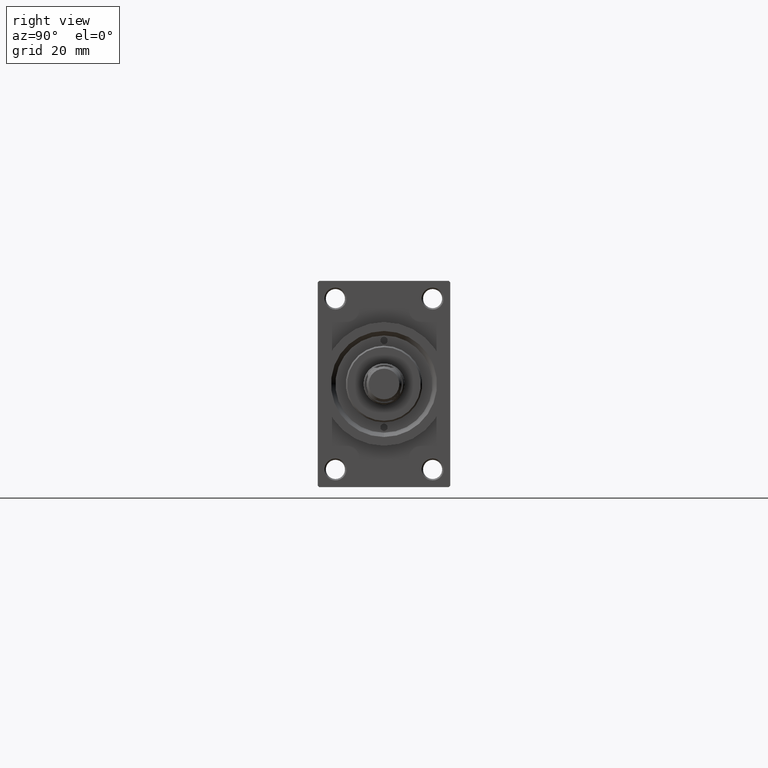
[diagram: clean part render]
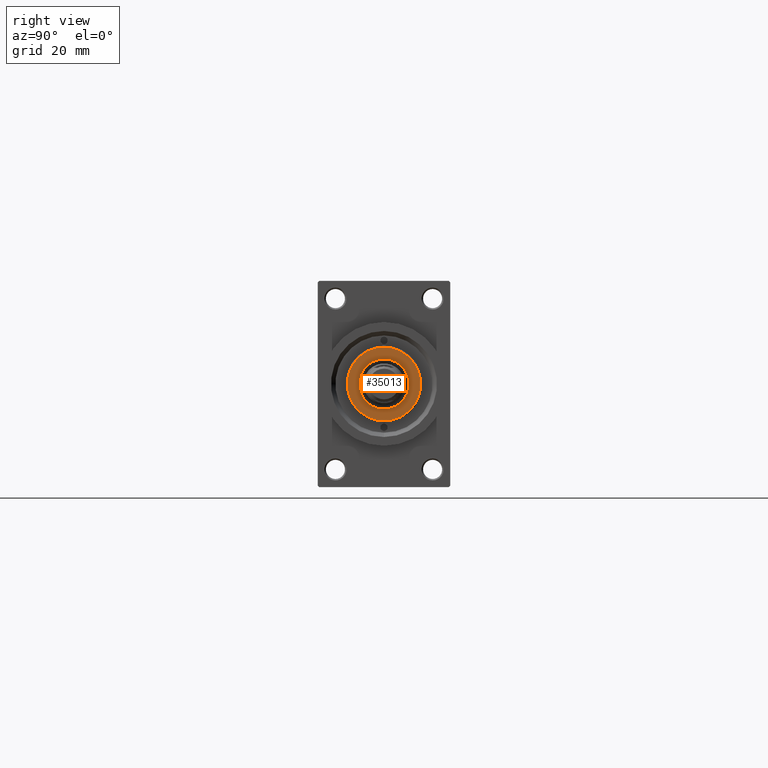
[diagram: same view with one face highlighted and labeled with its STEP entity id]
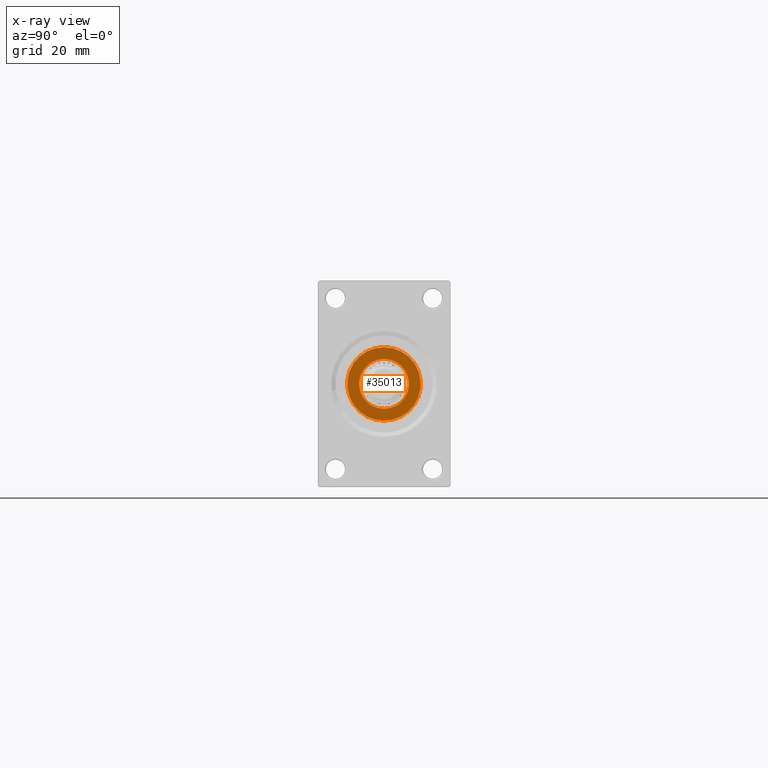
[diagram: x-ray of the same camera — body ghosted, the highlighted face saturated]
A machine part, right view. The second image highlights one B-rep face of the part: STEP entity #35013.
The next image is the same camera in x-ray: the body ghosted, the highlighted face saturated — about 0% of this face is hidden behind the body in this view.
In plain terms, the highlighted planar face has unit normal (1, -0, -0).
Its self-contained STEP definition (entity closure, byte-faithful):
#114 = DIRECTION ( 'NONE',  ( 0.000000000000000000, 0.000000000000000000, 1.000000000000000000 ) ) ;
#547 = CARTESIAN_POINT ( 'NONE',  ( 0.000000000000000000, 0.000000000000000000, 51.25999999999999801 ) ) ;
#623 = CIRCLE ( 'NONE', #33023, 12.49999999999998401 ) ;
#1095 = DIRECTION ( 'NONE',  ( 1.000000000000000000, 0.000000000000000000, 0.000000000000000000 ) ) ;
#1723 = EDGE_CURVE ( 'NONE', #41084, #3561, #22130, .T. ) ;
#3353 = CARTESIAN_POINT ( 'NONE',  ( 12.49999999999998401, 1.561424668912874322E-15, 51.25999999999999801 ) ) ;
#3561 = VERTEX_POINT ( 'NONE', #3353 ) ;
#4724 = CARTESIAN_POINT ( 'NONE',  ( 0.000000000000000000, 0.000000000000000000, 51.25999999999999801 ) ) ;
#7748 = EDGE_LOOP ( 'NONE', ( #45178, #39350 ) ) ;
#10254 = VERTEX_POINT ( 'NONE', #33018 ) ;
#14894 = CARTESIAN_POINT ( 'NONE',  ( 8.500000000000000000, 0.000000000000000000, 51.25999999999999801 ) ) ;
#15049 = DIRECTION ( 'NONE',  ( 0.000000000000000000, 0.000000000000000000, 1.000000000000000000 ) ) ;
#16976 = ORIENTED_EDGE ( 'NONE', *, *, #26093, .T. ) ;
#18296 = CARTESIAN_POINT ( 'NONE',  ( -12.49999999999998401, 0.000000000000000000, 51.25999999999999801 ) ) ;
#19614 = FACE_OUTER_BOUND ( 'NONE', #22287, .T. ) ;
#20901 = CARTESIAN_POINT ( 'NONE',  ( 0.000000000000000000, 0.000000000000000000, 51.25999999999999801 ) ) ;
#21623 = AXIS2_PLACEMENT_3D ( 'NONE', #547, #33666, #44797 ) ;
#22099 = CARTESIAN_POINT ( 'NONE',  ( 0.000000000000000000, 0.000000000000000000, 51.25999999999999801 ) ) ;
#22130 = CIRCLE ( 'NONE', #39882, 12.49999999999998401 ) ;
#22287 = EDGE_LOOP ( 'NONE', ( #38877, #16976 ) ) ;
#22769 = CARTESIAN_POINT ( 'NONE',  ( 0.000000000000000000, 0.000000000000000000, 51.25999999999999801 ) ) ;
#23246 = FACE_BOUND ( 'NONE', #7748, .T. ) ;
#23955 = CIRCLE ( 'NONE', #35535, 8.500000000000000000 ) ;
#25967 = DIRECTION ( 'NONE',  ( 1.000000000000000000, 0.000000000000000000, 0.000000000000000000 ) ) ;
#26093 = EDGE_CURVE ( 'NONE', #3561, #41084, #623, .T. ) ;
#26629 = PLANE ( 'NONE',  #26997 ) ;
#26997 = AXIS2_PLACEMENT_3D ( 'NONE', #22769, #15049, #29794 ) ;
#29794 = DIRECTION ( 'NONE',  ( 1.000000000000000000, 0.000000000000000000, -0.000000000000000000 ) ) ;
#30118 = CIRCLE ( 'NONE', #21623, 8.500000000000000000 ) ;
#33018 = CARTESIAN_POINT ( 'NONE',  ( -8.500000000000000000, 1.040949779275250140E-15, 51.25999999999999801 ) ) ;
#33023 = AXIS2_PLACEMENT_3D ( 'NONE', #4724, #34218, #1095 ) ;
#33666 = DIRECTION ( 'NONE',  ( 0.000000000000000000, 0.000000000000000000, 1.000000000000000000 ) ) ;
#34218 = DIRECTION ( 'NONE',  ( 0.000000000000000000, 0.000000000000000000, 1.000000000000000000 ) ) ;
#34861 = VERTEX_POINT ( 'NONE', #14894 ) ;
#34945 = EDGE_CURVE ( 'NONE', #34861, #10254, #30118, .T. ) ;
#35013 = ADVANCED_FACE ( 'NONE', ( #23246, #19614 ), #26629, .T. ) ;
#35348 = EDGE_CURVE ( 'NONE', #10254, #34861, #23955, .T. ) ;
#35535 = AXIS2_PLACEMENT_3D ( 'NONE', #20901, #36126, #39280 ) ;
#36126 = DIRECTION ( 'NONE',  ( 0.000000000000000000, 0.000000000000000000, 1.000000000000000000 ) ) ;
#38877 = ORIENTED_EDGE ( 'NONE', *, *, #1723, .T. ) ;
#39280 = DIRECTION ( 'NONE',  ( 1.000000000000000000, 0.000000000000000000, 0.000000000000000000 ) ) ;
#39350 = ORIENTED_EDGE ( 'NONE', *, *, #35348, .F. ) ;
#39882 = AXIS2_PLACEMENT_3D ( 'NONE', #22099, #114, #25967 ) ;
#41084 = VERTEX_POINT ( 'NONE', #18296 ) ;
#44797 = DIRECTION ( 'NONE',  ( 1.000000000000000000, 0.000000000000000000, 0.000000000000000000 ) ) ;
#45178 = ORIENTED_EDGE ( 'NONE', *, *, #34945, .F. ) ;